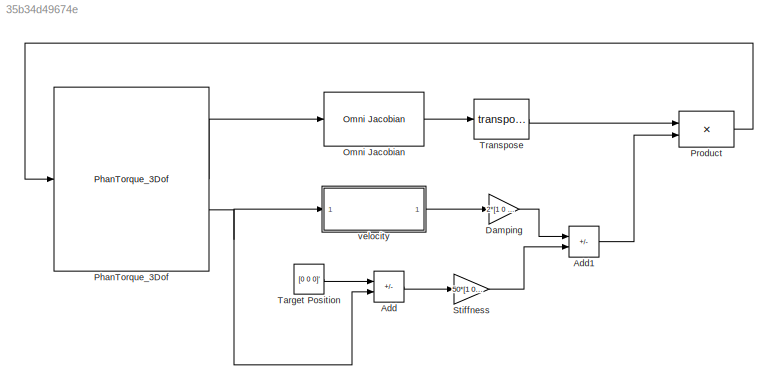
MODEL slx_35b34d49674e
KIND model
CONFIG AbsTol = auto
CONFIG EnableMultiTasking = off
CONFIG FixedStep = 0.001
CONFIG MaxStep = auto
CONFIG MinStep = auto
CONFIG RelTol = 1e-3
CONFIG SampleTimeConstraint = Unconstrained
CONFIG SolverName = FixedStepDiscrete
CONFIG StartTime = 0.0
CONFIG StopTime = inf
BLOCK [Sum] Add
  IconShape = rectangular
  Inputs = +-
BLOCK [Sum] Add1
  IconShape = rectangular
  Inputs = -+
BLOCK [Gain] Damping
  Gain = 2*[1 0 0; 0 1 0; 0 0 0]
  Multiplication = Matrix(K*u)
BLOCK [Reference] Omni Jacobian  REF=PhanTorque_3Dof_Library_64Bits/Omni Jacobian
  SourceBlock = PhanTorque_3Dof_Library_64Bits/Omni Jacobian
BLOCK [Reference] PhanTorque_3Dof  REF=PhanTorque_3Dof_Library_64Bits/PhanTorque_3Dof
  SourceBlock = PhanTorque_3Dof_Library_64Bits/PhanTorque_3Dof
BLOCK [Product] Product
  Multiplication = Matrix(*)
BLOCK [Gain] Stiffness
  Gain = 50*[1 0 0; 0 1 0; 0 0 0]
  Multiplication = Matrix(K*u)
BLOCK [Constant] Target Position
  Value = [0 0 0]'
BLOCK [Math] Transpose
  Operator = transpose
  SignedPower = on
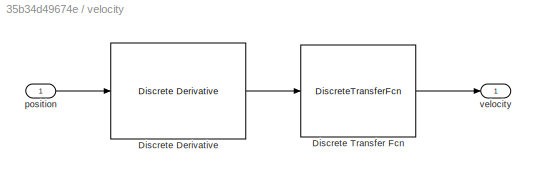
BLOCK [SubSystem] velocity
BLOCK [Reference] velocity/Discrete Derivative  REF=simulink/Discrete/Discrete Derivative
  SourceBlock = simulink/Discrete/Discrete Derivative
  SourceType = Discrete Derivative
BLOCK [DiscreteTransferFcn] velocity/Discrete Transfer Fcn
  Denominator = [1 -(1-0.001/0.2)]
  InputPortMap = u0
  Numerator = [0.001/0.2]
BLOCK [Inport] velocity/position
BLOCK [Outport] velocity/velocity
  VectorParamsAs1DForOutWhenUnconnected = off
LINE Add1:1 -> Product:2
LINE Add:1 -> Stiffness:1
LINE Damping:1 -> Add1:1
LINE Omni Jacobian:1 -> Transpose:1
LINE PhanTorque_3Dof:1 -> Omni Jacobian:1
NET PhanTorque_3Dof:2 -> Add:2, velocity:1
LINE Product:1 -> PhanTorque_3Dof:1
LINE Stiffness:1 -> Add1:2
LINE Target Position:1 -> Add:1
LINE Transpose:1 -> Product:1
LINE velocity/Discrete Derivative:1 -> velocity/Discrete Transfer Fcn:1
LINE velocity/Discrete Transfer Fcn:1 -> velocity/velocity:1
LINE velocity/position:1 -> velocity/Discrete Derivative:1
LINE velocity:1 -> Damping:1
note: NET lines group one-source signal fan-out (src -> all destinations, sorted); 1:1 wires keep LINE
